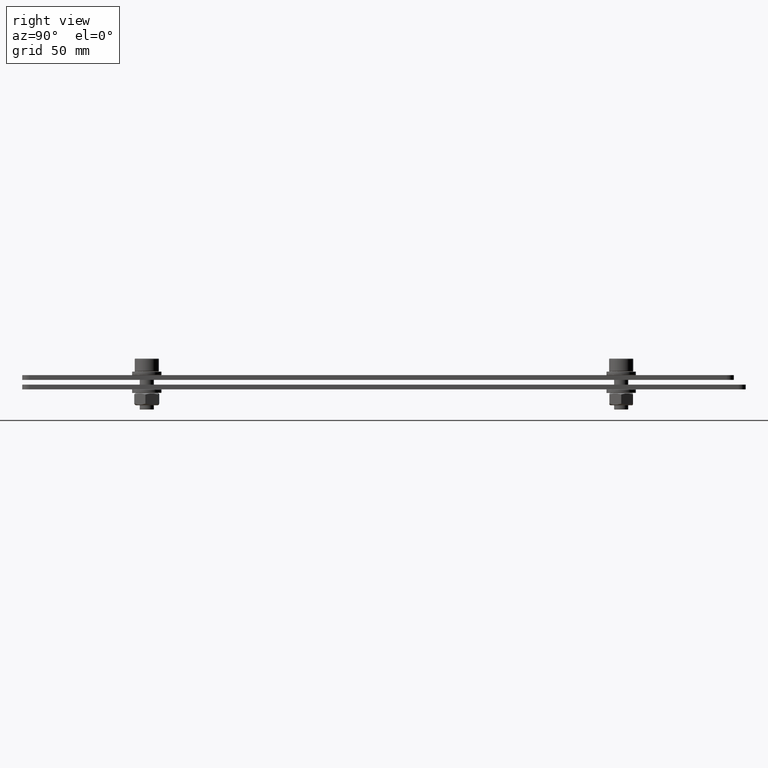
[diagram: clean part render]
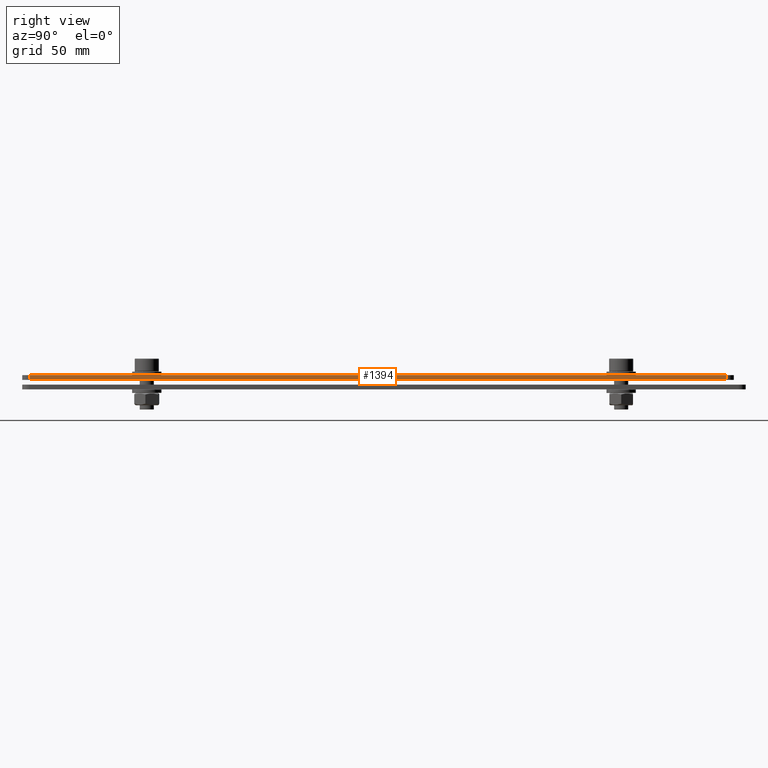
[diagram: same view with one face highlighted and labeled with its STEP entity id]
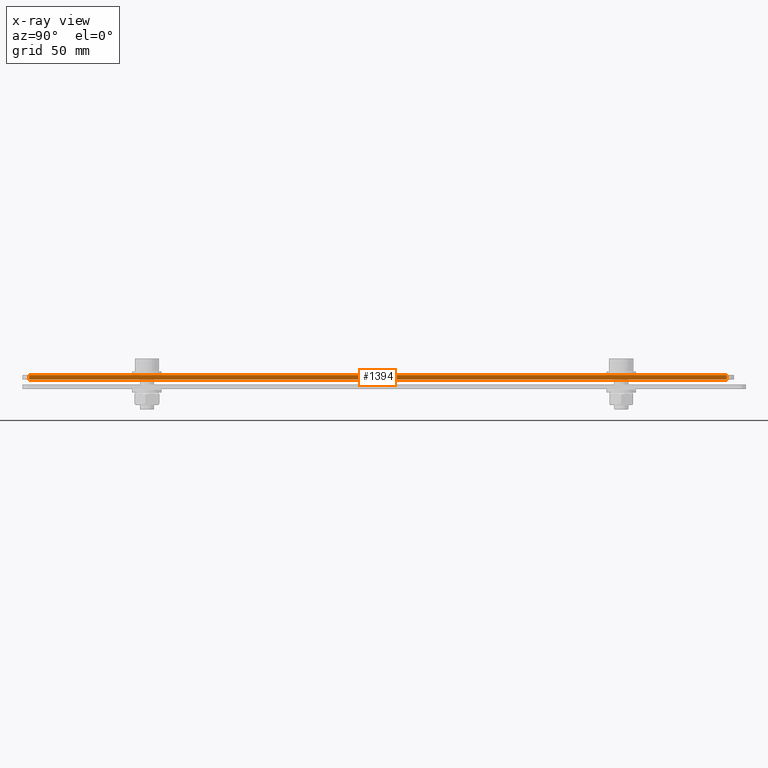
[diagram: x-ray of the same camera — body ghosted, the highlighted face saturated]
A machine part, right view. The second image highlights one B-rep face of the part: STEP entity #1394.
The next image is the same camera in x-ray: the body ghosted, the highlighted face saturated — about 0% of this face is hidden behind the body in this view.
In plain terms, the highlighted planar face has unit normal (1, -0, -0).
Its self-contained STEP definition (entity closure, byte-faithful):
#39 = LINE ( 'NONE', #1830, #2309 ) ;
#118 = VERTEX_POINT ( 'NONE', #3266 ) ;
#201 = FACE_OUTER_BOUND ( 'NONE', #213, .T. ) ;
#213 = EDGE_LOOP ( 'NONE', ( #490, #2259, #1605, #2745 ) ) ;
#274 = CARTESIAN_POINT ( 'NONE',  ( 3.215882421470084170E-14, 170.4999999999999716, 3.999999999999999112 ) ) ;
#490 = ORIENTED_EDGE ( 'NONE', *, *, #2365, .T. ) ;
#578 = CARTESIAN_POINT ( 'NONE',  ( 3.252606517456513302E-14, 173.4000000000000057, 3.999999999999999112 ) ) ;
#1136 = EDGE_CURVE ( 'NONE', #2189, #2599, #39, .T. ) ;
#1282 = EDGE_CURVE ( 'NONE', #2189, #1942, #1923, .T. ) ;
#1322 = DIRECTION ( 'NONE',  ( -1.266348137463069179E-16, -1.000000000000000000, -1.379055869979728501E-18 ) ) ;
#1379 = PLANE ( 'NONE',  #1500 ) ;
#1394 = ADVANCED_FACE ( 'NONE', ( #201 ), #1379, .T. ) ;
#1429 = VECTOR ( 'NONE', #2670, 1000.000000000000000 ) ;
#1500 = AXIS2_PLACEMENT_3D ( 'NONE', #3463, #2003, #3428 ) ;
#1605 = ORIENTED_EDGE ( 'NONE', *, *, #1282, .F. ) ;
#1685 = VECTOR ( 'NONE', #1322, 1000.000000000000000 ) ;
#1830 = CARTESIAN_POINT ( 'NONE',  ( 3.208254532628829733E-14, 170.4999999999999716, 1.999999999999999112 ) ) ;
#1923 = LINE ( 'NONE', #3038, #1685 ) ;
#1942 = VERTEX_POINT ( 'NONE', #2317 ) ;
#1944 = DIRECTION ( 'NONE',  ( 3.813944420627395867E-17, -1.379055869979733316E-18, 1.000000000000000000 ) ) ;
#1992 = VECTOR ( 'NONE', #1944, 1000.000000000000000 ) ;
#2003 = DIRECTION ( 'NONE',  ( 1.000000000000000000, -1.266348137463069179E-16, -3.813944420627395867E-17 ) ) ;
#2099 = LINE ( 'NONE', #578, #1429 ) ;
#2189 = VERTEX_POINT ( 'NONE', #2217 ) ;
#2217 = CARTESIAN_POINT ( 'NONE',  ( 3.208254532628829733E-14, 170.4999999999999716, 1.999999999999999112 ) ) ;
#2259 = ORIENTED_EDGE ( 'NONE', *, *, #3493, .F. ) ;
#2272 = LINE ( 'NONE', #2328, #1992 ) ;
#2309 = VECTOR ( 'NONE', #2408, 1000.000000000000000 ) ;
#2317 = CARTESIAN_POINT ( 'NONE',  ( -5.148089915125937320E-15, -123.5000000000000000, 1.999999999999998668 ) ) ;
#2328 = CARTESIAN_POINT ( 'NONE',  ( -5.148089915125937320E-15, -123.5000000000000000, 1.999999999999998668 ) ) ;
#2365 = EDGE_CURVE ( 'NONE', #2599, #118, #2099, .T. ) ;
#2408 = DIRECTION ( 'NONE',  ( 3.813944420627395867E-17, -1.379055869979733316E-18, 1.000000000000000000 ) ) ;
#2599 = VERTEX_POINT ( 'NONE', #274 ) ;
#2670 = DIRECTION ( 'NONE',  ( -1.266348137463069179E-16, -1.000000000000000000, -1.379055869979728501E-18 ) ) ;
#2745 = ORIENTED_EDGE ( 'NONE', *, *, #1136, .T. ) ;
#3038 = CARTESIAN_POINT ( 'NONE',  ( 3.244978628615258865E-14, 173.4000000000000057, 1.999999999999999112 ) ) ;
#3266 = CARTESIAN_POINT ( 'NONE',  ( -5.071811026713391375E-15, -123.5000000000000000, 3.999999999999999112 ) ) ;
#3428 = DIRECTION ( 'NONE',  ( 3.813944420627395867E-17, -1.379055869979733316E-18, 1.000000000000000000 ) ) ;
#3463 = CARTESIAN_POINT ( 'NONE',  ( 3.244978628615258865E-14, 173.4000000000000057, 1.999999999999999112 ) ) ;
#3493 = EDGE_CURVE ( 'NONE', #1942, #118, #2272, .T. ) ;